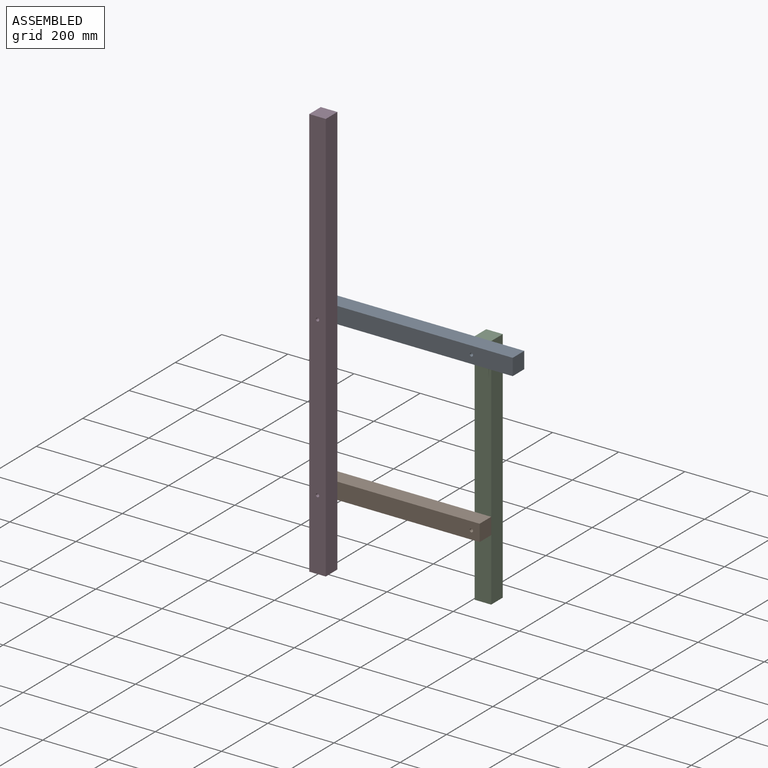
[diagram: assembled view]
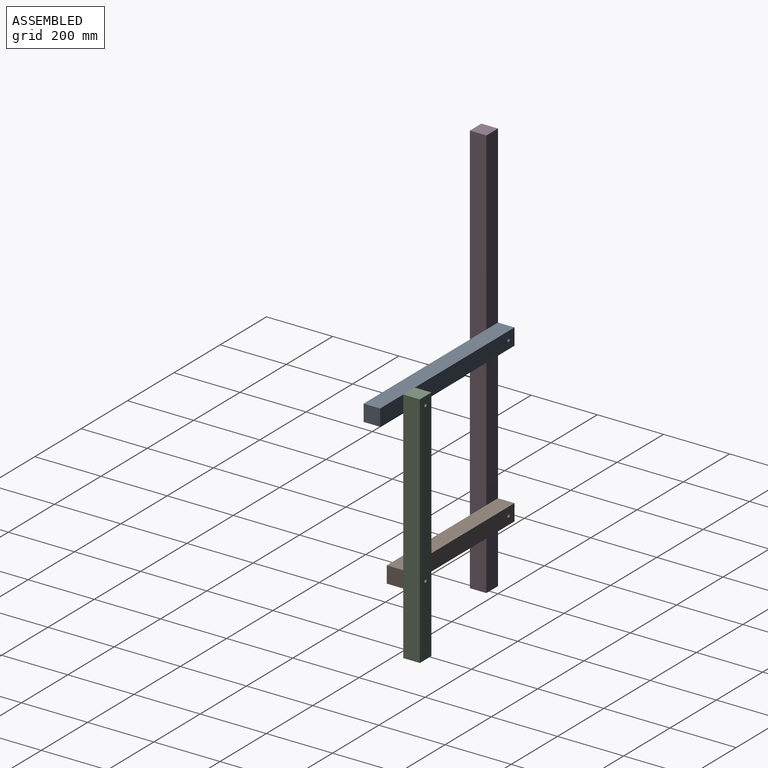
[diagram: assembled view, second angle]
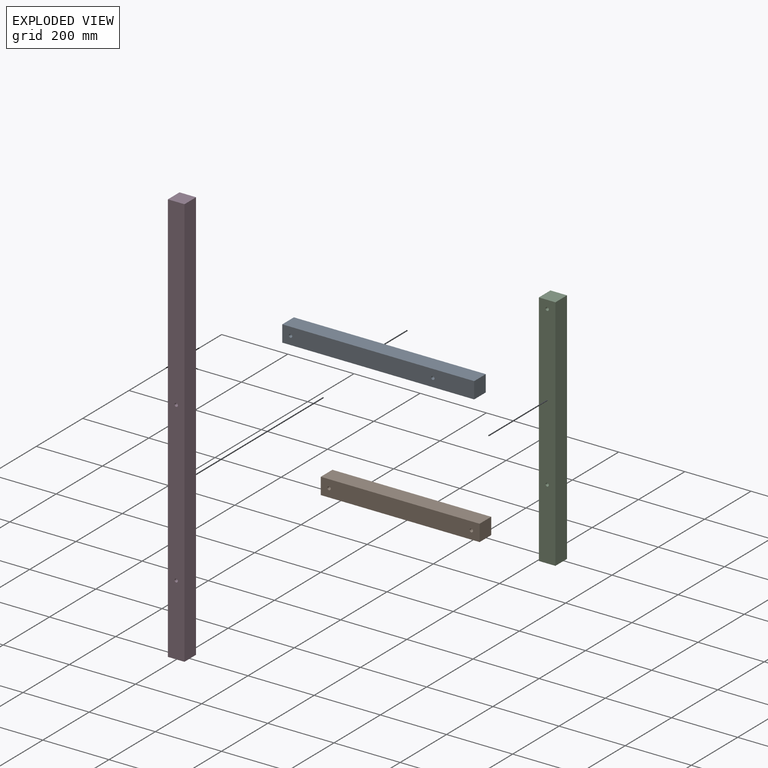
[diagram: exploded view]
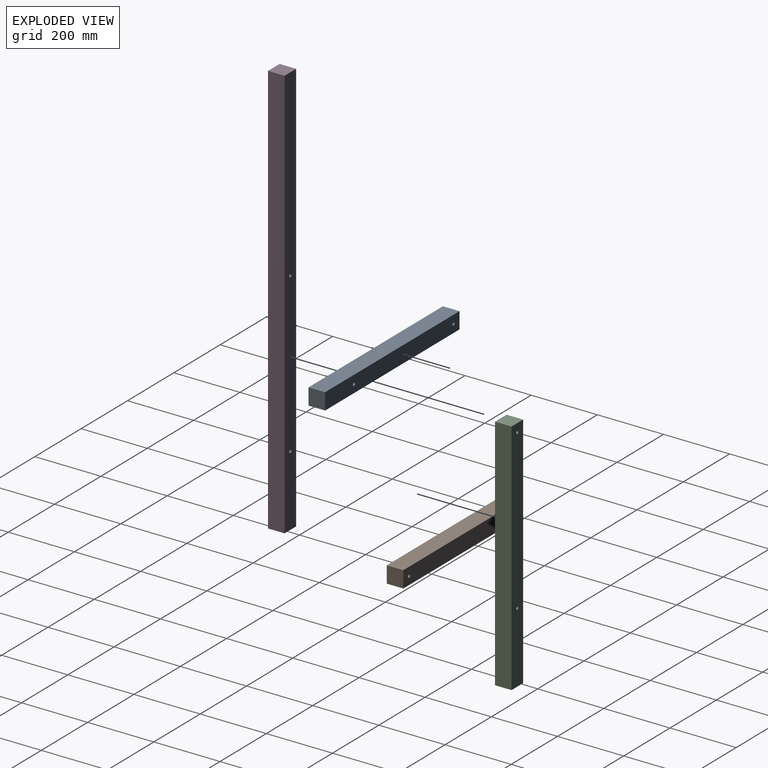
[diagram: exploded view, second angle]
ASSEMBLY  parts=4 mates=4
PART A: 8 faces, bbox 50x50x580 mm
  f0: plane 50x50mm, normal (0,0,1), area 2500mm2, adj f1,f3,f4,f5
  f1: plane 580x50mm, normal (0,-1,0), area 28842.9mm2, adj f0,f2,f4,f5,f6,f7
  f2: plane 50x50mm, normal (0,0,-1), area 2500mm2, adj f1,f3,f4,f5
  f3: plane 580x50mm, normal (0,1,0), area 28842.9mm2, adj f0,f2,f4,f5,f6,f7
  f4: plane 580x50mm, normal (1,0,0), area 29000mm2, adj f0,f1,f2,f3
  f5: plane 580x50mm, normal (-1,0,0), area 29000mm2, adj f0,f1,f2,f3
  f6: cylinder r=5mm len=50mm, axis (0,1,0), area 1570.8mm2, adj f1,f3
  f7: cylinder r=5mm len=50mm, axis (0,1,0), area 1570.8mm2, adj f1,f3
PART B: 8 faces, bbox 50x50x480 mm
  f0: plane 50x50mm, normal (0,0,1), area 2500mm2, adj f1,f3,f4,f5
  f1: plane 480x50mm, normal (0,-1,0), area 23842.9mm2, adj f0,f2,f4,f5,f6,f7
  f2: plane 50x50mm, normal (0,0,-1), area 2500mm2, adj f1,f3,f4,f5
  f3: plane 480x50mm, normal (0,1,0), area 23842.9mm2, adj f0,f2,f4,f5,f6,f7
  f4: plane 480x50mm, normal (1,0,0), area 24000mm2, adj f0,f1,f2,f3
  f5: plane 480x50mm, normal (-1,0,0), area 24000mm2, adj f0,f1,f2,f3
  f6: cylinder r=5mm len=50mm, axis (0,1,0), area 1570.8mm2, adj f1,f3
  f7: cylinder r=5mm len=50mm, axis (0,1,0), area 1570.8mm2, adj f1,f3
PART C: 8 faces, bbox 50x50x720 mm
  f0: plane 720x50mm, normal (0,-1,0), area 35842.9mm2, adj f1,f3,f4,f5,f6,f7
  f1: plane 50x50mm, normal (0,0,-1), area 2500mm2, adj f0,f2,f4,f5
  f2: plane 720x50mm, normal (0,1,0), area 35842.9mm2, adj f1,f3,f4,f5,f6,f7
  f3: plane 50x50mm, normal (0,0,1), area 2500mm2, adj f0,f2,f4,f5
  f4: plane 720x50mm, normal (1,0,0), area 36000mm2, adj f0,f1,f2,f3
  f5: plane 720x50mm, normal (-1,0,0), area 36000mm2, adj f0,f1,f2,f3
  f6: cylinder r=5mm len=50mm, axis (0,1,0), area 1570.8mm2, adj f0,f2
  f7: cylinder r=5mm len=50mm, axis (0,1,0), area 1570.8mm2, adj f0,f2
PART D: 8 faces, bbox 50x50x1250 mm
  f0: plane 50x50mm, normal (0,0,1), area 2500mm2, adj f1,f3,f4,f5
  f1: plane 1250x50mm, normal (0,-1,0), area 62342.9mm2, adj f0,f2,f4,f5,f6,f7
  f2: plane 50x50mm, normal (0,0,-1), area 2500mm2, adj f1,f3,f4,f5
  f3: plane 1250x50mm, normal (0,1,0), area 62342.9mm2, adj f0,f2,f4,f5,f6,f7
  f4: plane 1250x50mm, normal (1,0,0), area 62500mm2, adj f0,f1,f2,f3
  f5: plane 1250x50mm, normal (-1,0,0), area 62500mm2, adj f0,f1,f2,f3
  f6: cylinder r=5mm len=50mm, axis (0,1,0), area 1570.8mm2, adj f1,f3
  f7: cylinder r=5mm len=50mm, axis (0,1,0), area 1570.8mm2, adj f1,f3
PLACE A rot(axis=(0,1,0),90deg) t=(-670,0,720)mm
PLACE B rot(axis=(0,1,0),90deg) t=(-190,0,240)mm
PLACE C rot(axis=(0,-1,0),0deg) t=(430,0,-430)mm
PLACE D at identity fixed
MATE revolute B.f7 <-> D.f6  axis (0,-1,0) through (25,0,215)mm
MATE revolute A.f6 <-> C.f6  axis (0,1,0) through (455,50,695)mm
MATE revolute D.f7 <-> A.f7  axis (0,1,0) through (25,0,695)mm
MATE revolute B.f6 <-> C.f7  axis (0,1,0) through (455,50,215)mm
